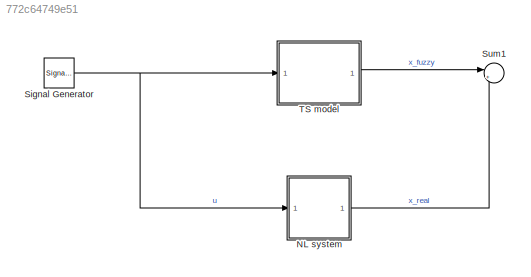
MODEL slx_772c64749e51
KIND model
CONFIG AbsTol = auto
CONFIG EnableMultiTasking = off
CONFIG FixedStep = auto
CONFIG MaxStep = auto
CONFIG MinStep = auto
CONFIG RelTol = 1e-3
CONFIG SampleTimeConstraint = Unconstrained
CONFIG Solver = VariableStepAuto
CONFIG SolverName = VariableStepAuto
CONFIG StartTime = 0.0
CONFIG StopTime = 50
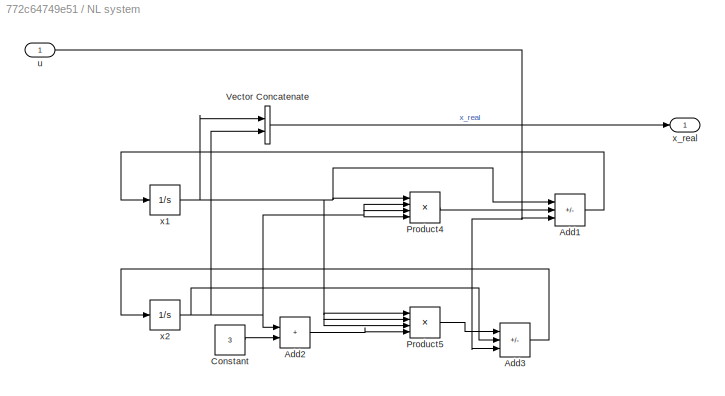
BLOCK [SubSystem] NL system
  Ports = [1, 1]
  RequestExecContextInheritance = off
BLOCK [Sum] NL system/Add1
  IconShape = rectangular
  Inputs = -++
  Ports = [3, 1]
BLOCK [Sum] NL system/Add2
  IconShape = rectangular
  Ports = [2, 1]
BLOCK [Sum] NL system/Add3
  IconShape = rectangular
  Inputs = +-+
  Ports = [3, 1]
BLOCK [Constant] NL system/Constant
  Value = 3
BLOCK [Product] NL system/Product4
  Inputs = 4
  Ports = [4, 1]
BLOCK [Product] NL system/Product5
  Inputs = 4
  Ports = [4, 1]
BLOCK [Concatenate] NL system/Vector Concatenate
  Ports = [2, 1]
BLOCK [Inport] NL system/u
BLOCK [Integrator] NL system/x1
  InitialCondition = x0(1)
  Ports = [1, 1]
BLOCK [Integrator] NL system/x2
  InitialCondition = x0(2)
  Ports = [1, 1]
BLOCK [Outport] NL system/x_real
BLOCK [SignalGenerator] Signal Generator
  Amplitude = 0.1
  Ports = [0, 1]
  Units = rad/sec
  WaveForm = square
BLOCK [Sum] Sum1
  Inputs = |+-
  Ports = [2, 1]
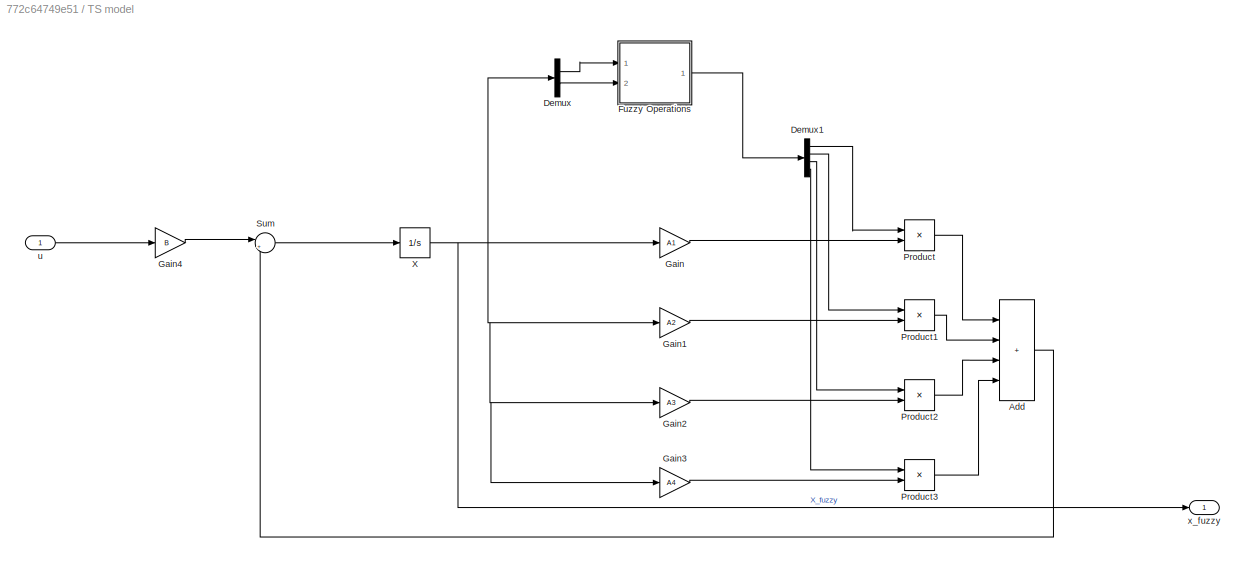
BLOCK [SubSystem] TS model
  Ports = [1, 1]
  RequestExecContextInheritance = off
BLOCK [Sum] TS model/Add
  IconShape = rectangular
  Inputs = ++++
  Ports = [4, 1]
BLOCK [Demux] TS model/Demux
  Outputs = 2
  Ports = [1, 2]
BLOCK [Demux] TS model/Demux1
  Ports = [1, 4]
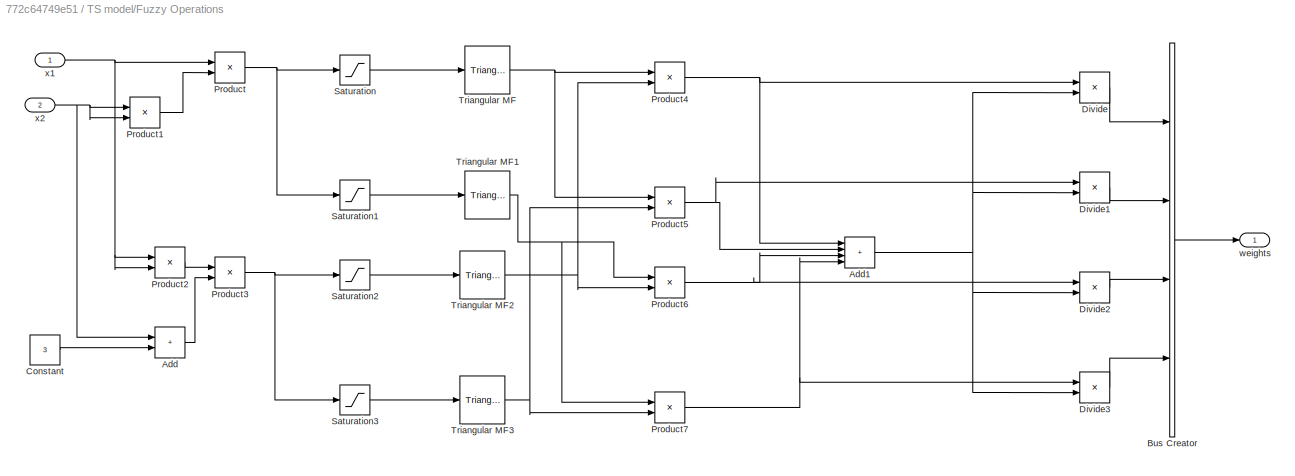
BLOCK [SubSystem] TS model/Fuzzy Operations
  Ports = [2, 1]
  RequestExecContextInheritance = off
BLOCK [Sum] TS model/Fuzzy Operations/Add
  IconShape = rectangular
  Ports = [2, 1]
BLOCK [Sum] TS model/Fuzzy Operations/Add1
  IconShape = rectangular
  Inputs = ++++
  Ports = [4, 1]
BLOCK [BusCreator] TS model/Fuzzy Operations/Bus Creator
  DisplayOption = bar
  InheritFromInputs = on
  Inputs = 4
  Ports = [4, 1]
BLOCK [Constant] TS model/Fuzzy Operations/Constant
  Value = 3
BLOCK [Product] TS model/Fuzzy Operations/Divide
  Inputs = */
  Ports = [2, 1]
BLOCK [Product] TS model/Fuzzy Operations/Divide1
  Inputs = */
  Ports = [2, 1]
BLOCK [Product] TS model/Fuzzy Operations/Divide2
  Inputs = */
  Ports = [2, 1]
BLOCK [Product] TS model/Fuzzy Operations/Divide3
  Inputs = */
  Ports = [2, 1]
BLOCK [Product] TS model/Fuzzy Operations/Product
  Ports = [2, 1]
BLOCK [Product] TS model/Fuzzy Operations/Product1
  Ports = [2, 1]
BLOCK [Product] TS model/Fuzzy Operations/Product2
  Ports = [2, 1]
BLOCK [Product] TS model/Fuzzy Operations/Product3
  Ports = [2, 1]
BLOCK [Product] TS model/Fuzzy Operations/Product4
  Ports = [2, 1]
BLOCK [Product] TS model/Fuzzy Operations/Product5
  Ports = [2, 1]
BLOCK [Product] TS model/Fuzzy Operations/Product6
  Ports = [2, 1]
BLOCK [Product] TS model/Fuzzy Operations/Product7
  Ports = [2, 1]
BLOCK [Saturate] TS model/Fuzzy Operations/Saturation
  LowerLimit = 0
  UpperLimit = 1
BLOCK [Saturate] TS model/Fuzzy Operations/Saturation1
  LowerLimit = 0
  UpperLimit = 1
BLOCK [Saturate] TS model/Fuzzy Operations/Saturation2
  LowerLimit = 0
  UpperLimit = 1
BLOCK [Saturate] TS model/Fuzzy Operations/Saturation3
  LowerLimit = 0
  UpperLimit = 1
BLOCK [Reference] TS model/Fuzzy Operations/Triangular MF  REF=fuzblock/Membership   (lib defined in mdl_858b3b3e7478)
Functions/Triangular MF
  Ports = [1, 1]
  SourceBlock = fuzblock/Membership \nFunctions/Triangular MF
  SourceProductBaseCode = FL
  SourceType = trimf
BLOCK [Reference] TS model/Fuzzy Operations/Triangular MF1  REF=fuzblock/Membership   (lib defined in mdl_858b3b3e7478)
Functions/Triangular MF
  Ports = [1, 1]
  SourceBlock = fuzblock/Membership \nFunctions/Triangular MF
  SourceProductBaseCode = FL
  SourceType = trimf
BLOCK [Reference] TS model/Fuzzy Operations/Triangular MF2  REF=fuzblock/Membership   (lib defined in mdl_858b3b3e7478)
Functions/Triangular MF
  Ports = [1, 1]
  SourceBlock = fuzblock/Membership \nFunctions/Triangular MF
  SourceProductBaseCode = FL
  SourceType = trimf
BLOCK [Reference] TS model/Fuzzy Operations/Triangular MF3  REF=fuzblock/Membership   (lib defined in mdl_858b3b3e7478)
Functions/Triangular MF
  Ports = [1, 1]
  SourceBlock = fuzblock/Membership \nFunctions/Triangular MF
  SourceProductBaseCode = FL
  SourceType = trimf
BLOCK [Outport] TS model/Fuzzy Operations/weights
BLOCK [Inport] TS model/Fuzzy Operations/x1
BLOCK [Inport] TS model/Fuzzy Operations/x2
  Port = 2
BLOCK [Gain] TS model/Gain
  Gain = A1
  Multiplication = Matrix(K*u)
BLOCK [Gain] TS model/Gain1
  Gain = A2
  Multiplication = Matrix(K*u)
BLOCK [Gain] TS model/Gain2
  Gain = A3
  Multiplication = Matrix(K*u)
BLOCK [Gain] TS model/Gain3
  Gain = A4
  Multiplication = Matrix(K*u)
BLOCK [Gain] TS model/Gain4
  Gain = B
  Multiplication = Matrix(K*u)
BLOCK [Product] TS model/Product
  Ports = [2, 1]
BLOCK [Product] TS model/Product1
  Ports = [2, 1]
BLOCK [Product] TS model/Product2
  Ports = [2, 1]
BLOCK [Product] TS model/Product3
  Ports = [2, 1]
BLOCK [Sum] TS model/Sum
  Inputs = |++
  Ports = [2, 1]
BLOCK [Integrator] TS model/X
  InitialCondition = x0
  Ports = [1, 1]
BLOCK [Inport] TS model/u
BLOCK [Outport] TS model/x_fuzzy
LINE NL system/Add1:1 -> NL system/x1:1
LINE NL system/Add2:1 -> NL system/Product5:4
LINE NL system/Add3:1 -> NL system/x2:1
LINE NL system/Constant:1 -> NL system/Add2:2
LINE NL system/Product4:1 -> NL system/Add1:2
LINE NL system/Product5:1 -> NL system/Add3:1
LINE NL system/Vector Concatenate:1 -> NL system/x_real:1
NET NL system/u:1 -> NL system/Add1:3, NL system/Add3:3
NET NL system/x1:1 -> NL system/Add1:1, NL system/Product4:1, NL system/Product5:1, NL system/Product5:2, NL system/Product5:3, NL system/Vector Concatenate:1
NET NL system/x2:1 -> NL system/Add2:1, NL system/Add3:2, NL system/Product4:2, NL system/Product4:3, NL system/Product4:4, NL system/Vector Concatenate:2
LINE NL system:1 -> Sum1:2
NET Signal Generator:1 -> NL system:1, TS model:1
LINE TS model/Add:1 -> TS model/Sum:2
LINE TS model/Demux1:1 -> TS model/Product:1
LINE TS model/Demux1:2 -> TS model/Product1:1
LINE TS model/Demux1:3 -> TS model/Product2:1
LINE TS model/Demux1:4 -> TS model/Product3:1
LINE TS model/Demux:1 -> TS model/Fuzzy Operations:1
LINE TS model/Demux:2 -> TS model/Fuzzy Operations:2
NET TS model/Fuzzy Operations/Add1:1 -> TS model/Fuzzy Operations/Divide1:2, TS model/Fuzzy Operations/Divide2:2, TS model/Fuzzy Operations/Divide3:2, TS model/Fuzzy Operations/Divide:2
LINE TS model/Fuzzy Operations/Add:1 -> TS model/Fuzzy Operations/Product3:2
LINE TS model/Fuzzy Operations/Bus Creator:1 -> TS model/Fuzzy Operations/weights:1
LINE TS model/Fuzzy Operations/Constant:1 -> TS model/Fuzzy Operations/Add:2
LINE TS model/Fuzzy Operations/Divide1:1 -> TS model/Fuzzy Operations/Bus Creator:2
LINE TS model/Fuzzy Operations/Divide2:1 -> TS model/Fuzzy Operations/Bus Creator:3
LINE TS model/Fuzzy Operations/Divide3:1 -> TS model/Fuzzy Operations/Bus Creator:4
LINE TS model/Fuzzy Operations/Divide:1 -> TS model/Fuzzy Operations/Bus Creator:1
LINE TS model/Fuzzy Operations/Product1:1 -> TS model/Fuzzy Operations/Product:2
LINE TS model/Fuzzy Operations/Product2:1 -> TS model/Fuzzy Operations/Product3:1
NET TS model/Fuzzy Operations/Product3:1 -> TS model/Fuzzy Operations/Saturation2:1, TS model/Fuzzy Operations/Saturation3:1
NET TS model/Fuzzy Operations/Product4:1 -> TS model/Fuzzy Operations/Add1:1, TS model/Fuzzy Operations/Divide:1
NET TS model/Fuzzy Operations/Product5:1 -> TS model/Fuzzy Operations/Add1:2, TS model/Fuzzy Operations/Divide1:1
NET TS model/Fuzzy Operations/Product6:1 -> TS model/Fuzzy Operations/Add1:3, TS model/Fuzzy Operations/Divide2:1
NET TS model/Fuzzy Operations/Product7:1 -> TS model/Fuzzy Operations/Add1:4, TS model/Fuzzy Operations/Divide3:1
NET TS model/Fuzzy Operations/Product:1 -> TS model/Fuzzy Operations/Saturation1:1, TS model/Fuzzy Operations/Saturation:1
LINE TS model/Fuzzy Operations/Saturation1:1 -> TS model/Fuzzy Operations/Triangular MF1:1
LINE TS model/Fuzzy Operations/Saturation2:1 -> TS model/Fuzzy Operations/Triangular MF2:1
LINE TS model/Fuzzy Operations/Saturation3:1 -> TS model/Fuzzy Operations/Triangular MF3:1
LINE TS model/Fuzzy Operations/Saturation:1 -> TS model/Fuzzy Operations/Triangular MF:1
NET TS model/Fuzzy Operations/Triangular MF1:1 -> TS model/Fuzzy Operations/Product6:1, TS model/Fuzzy Operations/Product7:1
NET TS model/Fuzzy Operations/Triangular MF2:1 -> TS model/Fuzzy Operations/Product4:2, TS model/Fuzzy Operations/Product6:2
NET TS model/Fuzzy Operations/Triangular MF3:1 -> TS model/Fuzzy Operations/Product5:2, TS model/Fuzzy Operations/Product7:2
NET TS model/Fuzzy Operations/Triangular MF:1 -> TS model/Fuzzy Operations/Product4:1, TS model/Fuzzy Operations/Product5:1
NET TS model/Fuzzy Operations/x1:1 -> TS model/Fuzzy Operations/Product2:1, TS model/Fuzzy Operations/Product2:2, TS model/Fuzzy Operations/Product:1
NET TS model/Fuzzy Operations/x2:1 -> TS model/Fuzzy Operations/Add:1, TS model/Fuzzy Operations/Product1:1, TS model/Fuzzy Operations/Product1:2
LINE TS model/Fuzzy Operations:1 -> TS model/Demux1:1
LINE TS model/Gain1:1 -> TS model/Product1:2
LINE TS model/Gain2:1 -> TS model/Product2:2
LINE TS model/Gain3:1 -> TS model/Product3:2
LINE TS model/Gain4:1 -> TS model/Sum:1
LINE TS model/Gain:1 -> TS model/Product:2
LINE TS model/Product1:1 -> TS model/Add:2
LINE TS model/Product2:1 -> TS model/Add:3
LINE TS model/Product3:1 -> TS model/Add:4
LINE TS model/Product:1 -> TS model/Add:1
LINE TS model/Sum:1 -> TS model/X:1
NET TS model/X:1 -> TS model/Demux:1, TS model/Gain1:1, TS model/Gain2:1, TS model/Gain3:1, TS model/Gain:1, TS model/x_fuzzy:1
LINE TS model/u:1 -> TS model/Gain4:1
LINE TS model:1 -> Sum1:1
note: NET lines group one-source signal fan-out (src -> all destinations, sorted); 1:1 wires keep LINE
